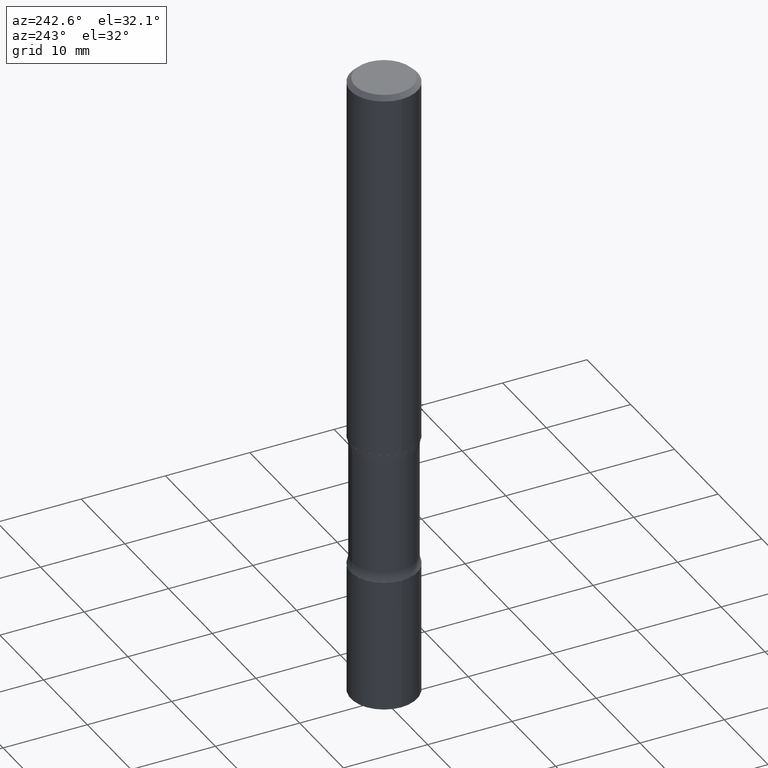
[diagram: clean part render]
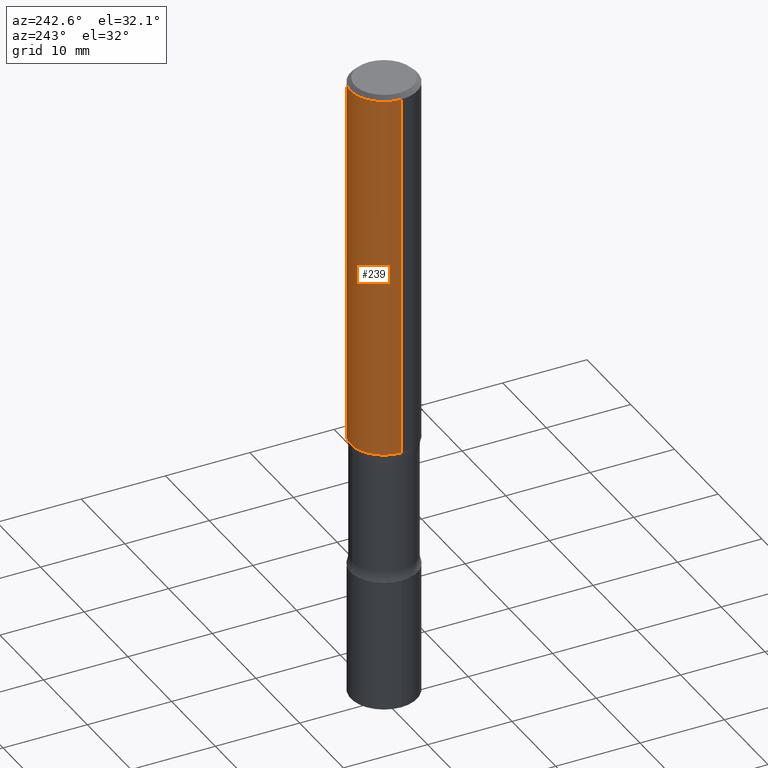
[diagram: same view with one face highlighted and labeled with its STEP entity id]
A machine part, auxiliary view. The second image highlights one B-rep face of the part: STEP entity #239.
In plain terms, the highlighted cylindrical surface (partial cylindrical patch) has radius 3.9687 mm, axis along (-0, 0, 1).
Its self-contained STEP definition (entity closure, byte-faithful):
#2 = CARTESIAN_POINT ( 'NONE',  ( 4.890937612370273159E-31, -6.982962677686291609E-17, -0.02000000000000000042 ) ) ;
#23 = DIRECTION ( 'NONE',  ( 1.000000000000000000, -6.982962677686266711E-15, 4.876176775795936353E-29 ) ) ;
#48 = DIRECTION ( 'NONE',  ( 1.000000000000000000, -6.982962677686266711E-15, 0.000000000000000000 ) ) ;
#62 = EDGE_CURVE ( 'NONE', #190, #533, #193, .T. ) ;
#64 = VECTOR ( 'NONE', #109, 39.37007874015748143 ) ;
#107 = EDGE_CURVE ( 'NONE', #306, #190, #219, .T. ) ;
#109 = DIRECTION ( 'NONE',  ( -2.445468806185136877E-29, 3.491481338843145188E-15, 1.000000000000000000 ) ) ;
#134 = AXIS2_PLACEMENT_3D ( 'NONE', #241, #156, #23 ) ;
#151 = CARTESIAN_POINT ( 'NONE',  ( 4.279570410823989605E-29, -6.110092342975506249E-15, -1.750000000000000444 ) ) ;
#153 = CARTESIAN_POINT ( 'NONE',  ( -0.1562499999999999722, 1.110223024625156343E-15, -7.685836078523288357E-30 ) ) ;
#156 = DIRECTION ( 'NONE',  ( -2.445468806185136597E-29, 3.491481338843145583E-15, 1.000000000000000000 ) ) ;
#163 = CARTESIAN_POINT ( 'NONE',  ( 0.1562500000000000833, -7.201180261363985422E-15, -1.750000000000000444 ) ) ;
#164 = AXIS2_PLACEMENT_3D ( 'NONE', #2, #559, #48 ) ;
#190 = VERTEX_POINT ( 'NONE', #322 ) ;
#193 = CIRCLE ( 'NONE', #164, 0.1562499999999998612 ) ;
#198 = ORIENTED_EDGE ( 'NONE', *, *, #62, .F. ) ;
#207 = CARTESIAN_POINT ( 'NONE',  ( -0.1562500000000000833, -1.979737960251025472E-15, -1.750000000000000444 ) ) ;
#212 = AXIS2_PLACEMENT_3D ( 'NONE', #151, #318, #452 ) ;
#219 = LINE ( 'NONE', #327, #224 ) ;
#224 = VECTOR ( 'NONE', #529, 39.37007874015748143 ) ;
#239 = ADVANCED_FACE ( 'NONE', ( #281 ), #310, .T. ) ;
#241 = CARTESIAN_POINT ( 'NONE',  ( 0.000000000000000000, 0.000000000000000000, 0.000000000000000000 ) ) ;
#271 = VERTEX_POINT ( 'NONE', #207 ) ;
#281 = FACE_OUTER_BOUND ( 'NONE', #492, .T. ) ;
#283 = LINE ( 'NONE', #153, #64 ) ;
#306 = VERTEX_POINT ( 'NONE', #163 ) ;
#310 = CYLINDRICAL_SURFACE ( 'NONE', #134, 0.1562499999999999722 ) ;
#318 = DIRECTION ( 'NONE',  ( -2.445468806185136597E-29, 3.491481338843145583E-15, 1.000000000000000000 ) ) ;
#322 = CARTESIAN_POINT ( 'NONE',  ( 0.1562499999999998612, -1.141782438928663922E-15, -0.02000000000000000042 ) ) ;
#327 = CARTESIAN_POINT ( 'NONE',  ( 0.1562499999999999722, -1.091087918388478976E-15, 7.619026212181148976E-30 ) ) ;
#343 = CARTESIAN_POINT ( 'NONE',  ( -0.1562499999999998612, 1.021258291611615284E-15, -0.02000000000000000042 ) ) ;
#352 = ORIENTED_EDGE ( 'NONE', *, *, #471, .T. ) ;
#357 = ORIENTED_EDGE ( 'NONE', *, *, #107, .F. ) ;
#360 = ORIENTED_EDGE ( 'NONE', *, *, #404, .T. ) ;
#404 = EDGE_CURVE ( 'NONE', #271, #533, #283, .T. ) ;
#422 = CIRCLE ( 'NONE', #212, 0.1562500000000000833 ) ;
#452 = DIRECTION ( 'NONE',  ( 1.000000000000000000, -6.982962677686265133E-15, 0.000000000000000000 ) ) ;
#471 = EDGE_CURVE ( 'NONE', #306, #271, #422, .T. ) ;
#492 = EDGE_LOOP ( 'NONE', ( #352, #360, #198, #357 ) ) ;
#529 = DIRECTION ( 'NONE',  ( -2.445468806185136877E-29, 3.491481338843145188E-15, 1.000000000000000000 ) ) ;
#533 = VERTEX_POINT ( 'NONE', #343 ) ;
#559 = DIRECTION ( 'NONE',  ( -2.445468806185136597E-29, 3.491481338843145583E-15, 1.000000000000000000 ) ) ;